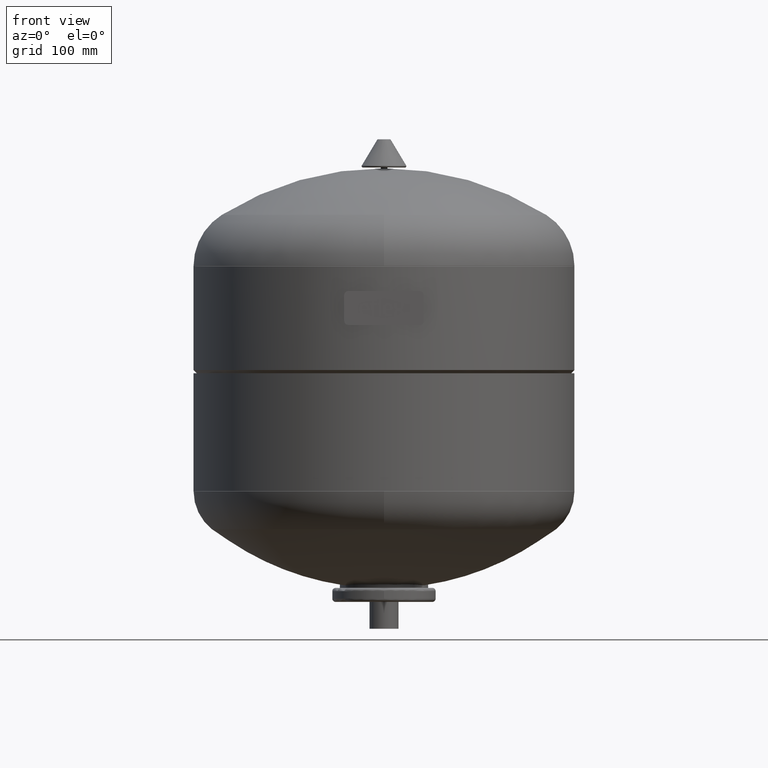
[diagram: clean part render]
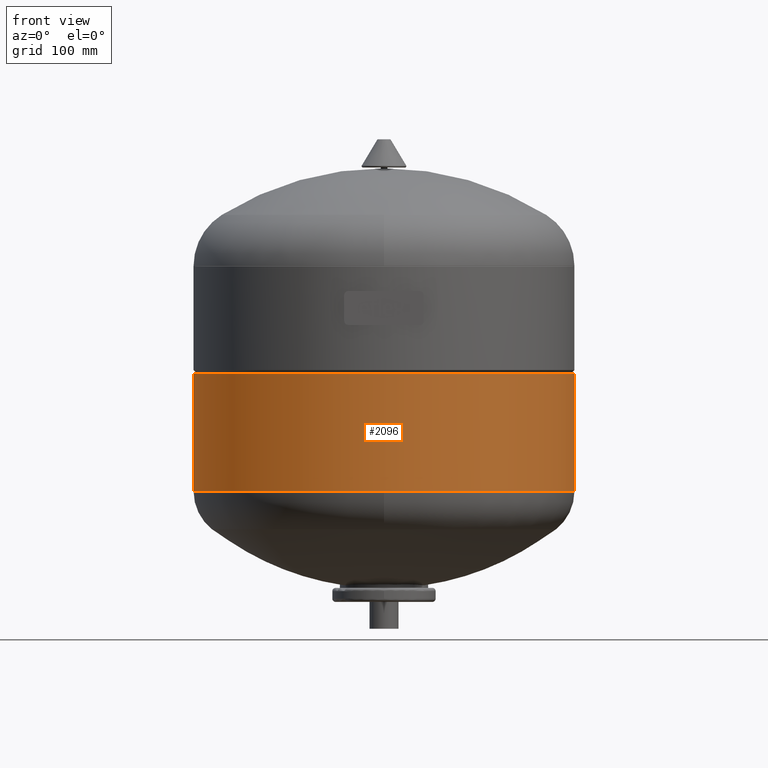
[diagram: same view with one face highlighted and labeled with its STEP entity id]
A machine part, front view. The second image highlights one B-rep face of the part: STEP entity #2096.
In plain terms, the highlighted cylindrical surface (partial cylindrical patch) has radius 177 mm, axis along (0, 0, 1).
Its self-contained STEP definition (entity closure, byte-faithful):
#2055=CARTESIAN_POINT('',(0.0,0.0,186.24999999999994));
#2056=DIRECTION('',(0.0,0.0,1.0));
#2057=DIRECTION('',(1.0,0.0,0.0));
#2058=AXIS2_PLACEMENT_3D('',#2055,#2056,#2057);
#2059=CYLINDRICAL_SURFACE('',#2058,176.99999999999994);
#2060=CARTESIAN_POINT('',(176.99999999999994,0.0,237.49999999999994));
#2061=VERTEX_POINT('',#2060);
#2062=CARTESIAN_POINT('',(176.99999999999991,0.0,127.99999999999997));
#2063=VERTEX_POINT('',#2062);
#2064=CARTESIAN_POINT('',(176.99999999999994,0.0,237.49999999999994));
#2065=DIRECTION('',(0.0,0.0,-1.0));
#2066=VECTOR('',#2065,109.49999999999997);
#2067=LINE('',#2064,#2066);
#2068=EDGE_CURVE('',#2061,#2063,#2067,.T.);
#2069=ORIENTED_EDGE('',*,*,#2068,.F.);
#2070=CARTESIAN_POINT('',(-176.99999999999994,-2.167553E-014,237.49999999999994));
#2071=VERTEX_POINT('',#2070);
#2072=CARTESIAN_POINT('',(0.0,0.0,237.49999999999994));
#2073=DIRECTION('',(0.0,0.0,1.0));
#2074=DIRECTION('',(1.0,0.0,0.0));
#2075=AXIS2_PLACEMENT_3D('',#2072,#2073,#2074);
#2076=CIRCLE('',#2075,176.99999999999994);
#2077=EDGE_CURVE('',#2071,#2061,#2076,.T.);
#2078=ORIENTED_EDGE('',*,*,#2077,.F.);
#2079=CARTESIAN_POINT('',(-176.99999999999994,-2.167553E-014,127.99999999999997));
#2080=VERTEX_POINT('',#2079);
#2081=CARTESIAN_POINT('',(-176.99999999999994,-2.167553E-014,237.49999999999994));
#2082=DIRECTION('',(0.0,0.0,-1.0));
#2083=VECTOR('',#2082,109.49999999999997);
#2084=LINE('',#2081,#2083);
#2085=EDGE_CURVE('',#2071,#2080,#2084,.T.);
#2086=ORIENTED_EDGE('',*,*,#2085,.T.);
#2087=CARTESIAN_POINT('',(0.0,0.0,127.99999999999997));
#2088=DIRECTION('',(0.0,0.0,1.0));
#2089=DIRECTION('',(1.0,0.0,0.0));
#2090=AXIS2_PLACEMENT_3D('',#2087,#2088,#2089);
#2091=CIRCLE('',#2090,176.99999999999991);
#2092=EDGE_CURVE('',#2080,#2063,#2091,.T.);
#2093=ORIENTED_EDGE('',*,*,#2092,.T.);
#2094=EDGE_LOOP('',(#2069,#2078,#2086,#2093));
#2095=FACE_OUTER_BOUND('',#2094,.T.);
#2096=ADVANCED_FACE('',(#2095),#2059,.T.);